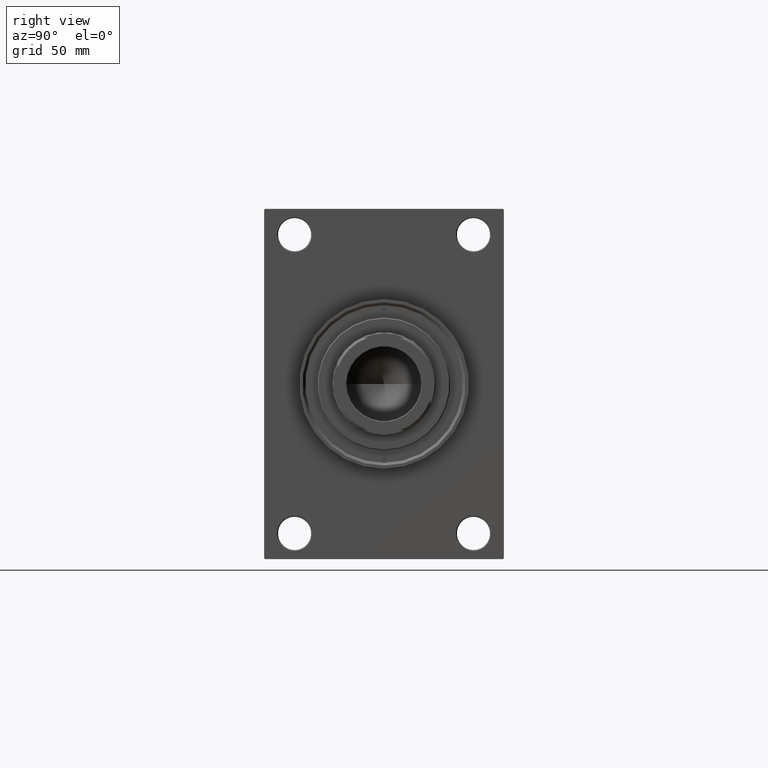
[diagram: clean part render]
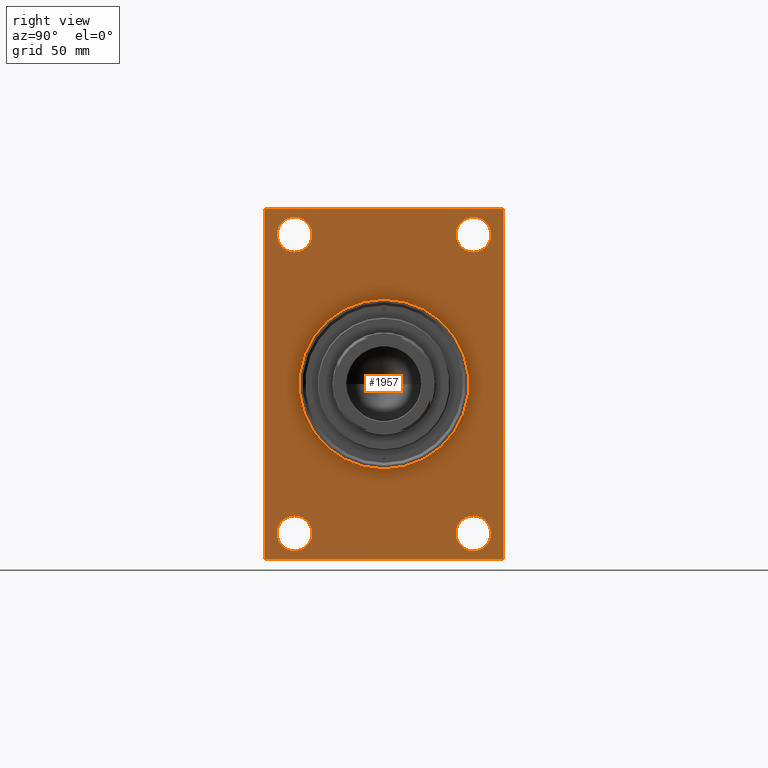
[diagram: same view with one face highlighted and labeled with its STEP entity id]
A machine part, right view. The second image highlights one B-rep face of the part: STEP entity #1957.
In plain terms, the highlighted planar face has unit normal (-1, 0, 0).
Its self-contained STEP definition (entity closure, byte-faithful):
#110 = DIRECTION ( 'NONE',  ( -1.000000000000000000, 0.000000000000000000, -0.000000000000000000 ) ) ;
#252 = CARTESIAN_POINT ( 'NONE',  ( 246.0000000000000000, 5.633375276077824704E-15, -46.00000000000000000 ) ) ;
#695 = VECTOR ( 'NONE', #41105, 1000.000000000000000 ) ;
#835 = VECTOR ( 'NONE', #39376, 1000.000000000000000 ) ;
#1339 = VERTEX_POINT ( 'NONE', #32577 ) ;
#1497 = AXIS2_PLACEMENT_3D ( 'NONE', #26065, #40837, #3973 ) ;
#1749 = ORIENTED_EDGE ( 'NONE', *, *, #45504, .F. ) ;
#1957 = ADVANCED_FACE ( 'NONE', ( #30671, #8340, #45426, #22194, #29716, #44475 ), #11262, .F. ) ;
#2492 = LINE ( 'NONE', #46135, #45872 ) ;
#2872 = CARTESIAN_POINT ( 'NONE',  ( 246.0000000000000000, 64.49999999999998579, -95.00000000000001421 ) ) ;
#3087 = EDGE_LOOP ( 'NONE', ( #6034, #28840 ) ) ;
#3107 = LINE ( 'NONE', #22030, #31258 ) ;
#3192 = CARTESIAN_POINT ( 'NONE',  ( 246.0000000000000000, 0.000000000000000000, 0.000000000000000000 ) ) ;
#3275 = DIRECTION ( 'NONE',  ( 0.000000000000000000, 0.000000000000000000, 1.000000000000000000 ) ) ;
#3719 = VERTEX_POINT ( 'NONE', #28174 ) ;
#3882 = CARTESIAN_POINT ( 'NONE',  ( 246.0000000000000000, -48.49999999999999289, -90.50000000000000000 ) ) ;
#3973 = DIRECTION ( 'NONE',  ( -0.000000000000000000, 0.000000000000000000, 1.000000000000000000 ) ) ;
#4565 = EDGE_CURVE ( 'NONE', #34836, #40055, #43947, .T. ) ;
#4572 = ORIENTED_EDGE ( 'NONE', *, *, #18733, .T. ) ;
#4810 = CIRCLE ( 'NONE', #31949, 46.00000000000000000 ) ;
#5076 = ORIENTED_EDGE ( 'NONE', *, *, #34911, .T. ) ;
#6034 = ORIENTED_EDGE ( 'NONE', *, *, #36909, .T. ) ;
#6385 = CIRCLE ( 'NONE', #17230, 9.499999999999980460 ) ;
#6458 = CIRCLE ( 'NONE', #17329, 46.00000000000000000 ) ;
#6848 = CARTESIAN_POINT ( 'NONE',  ( 246.0000000000000000, -65.00000000000001421, -94.50000000000002842 ) ) ;
#6919 = VERTEX_POINT ( 'NONE', #3882 ) ;
#7168 = DIRECTION ( 'NONE',  ( -0.000000000000000000, -0.7071067811865378028, -0.7071067811865573427 ) ) ;
#7448 = CARTESIAN_POINT ( 'NONE',  ( 246.0000000000000000, 0.000000000000000000, 0.000000000000000000 ) ) ;
#7467 = CARTESIAN_POINT ( 'NONE',  ( 246.0000000000000000, 64.49999999999991473, 94.99999999999997158 ) ) ;
#7526 = CARTESIAN_POINT ( 'NONE',  ( 246.0000000000000000, 48.50000000000000711, 90.49999999999998579 ) ) ;
#7724 = ORIENTED_EDGE ( 'NONE', *, *, #16387, .T. ) ;
#7854 = EDGE_CURVE ( 'NONE', #11502, #20138, #4810, .T. ) ;
#8340 = FACE_BOUND ( 'NONE', #3087, .T. ) ;
#8640 = LINE ( 'NONE', #31209, #9438 ) ;
#9161 = AXIS2_PLACEMENT_3D ( 'NONE', #17849, #14207, #10793 ) ;
#9424 = VERTEX_POINT ( 'NONE', #7526 ) ;
#9438 = VECTOR ( 'NONE', #15918, 1000.000000000000000 ) ;
#9715 = ORIENTED_EDGE ( 'NONE', *, *, #7854, .F. ) ;
#9819 = DIRECTION ( 'NONE',  ( 0.000000000000000000, 0.000000000000000000, 1.000000000000000000 ) ) ;
#10232 = AXIS2_PLACEMENT_3D ( 'NONE', #44508, #22458, #34090 ) ;
#10584 = EDGE_CURVE ( 'NONE', #15695, #35281, #18921, .T. ) ;
#10793 = DIRECTION ( 'NONE',  ( 0.000000000000000000, 0.000000000000000000, 1.000000000000000000 ) ) ;
#11041 = LINE ( 'NONE', #19039, #16804 ) ;
#11262 = PLANE ( 'NONE',  #1497 ) ;
#11263 = LINE ( 'NONE', #11735, #30458 ) ;
#11360 = CIRCLE ( 'NONE', #15206, 9.499999999999980460 ) ;
#11502 = VERTEX_POINT ( 'NONE', #16797 ) ;
#11534 = CARTESIAN_POINT ( 'NONE',  ( 246.0000000000000000, 64.99999999999997158, 94.99999999999997158 ) ) ;
#11735 = CARTESIAN_POINT ( 'NONE',  ( 246.0000000000000000, 64.99999999999997158, 94.99999999999997158 ) ) ;
#12853 = CARTESIAN_POINT ( 'NONE',  ( 246.0000000000000000, -48.50000000000000000, 90.49999999999998579 ) ) ;
#13132 = VERTEX_POINT ( 'NONE', #41290 ) ;
#14048 = EDGE_LOOP ( 'NONE', ( #19413, #36728 ) ) ;
#14207 = DIRECTION ( 'NONE',  ( -1.000000000000000000, 0.000000000000000000, -0.000000000000000000 ) ) ;
#14285 = AXIS2_PLACEMENT_3D ( 'NONE', #31547, #28624, #46304 ) ;
#14704 = VERTEX_POINT ( 'NONE', #22906 ) ;
#15179 = LINE ( 'NONE', #11534, #695 ) ;
#15206 = AXIS2_PLACEMENT_3D ( 'NONE', #34061, #23158, #16346 ) ;
#15245 = VERTEX_POINT ( 'NONE', #22254 ) ;
#15610 = EDGE_CURVE ( 'NONE', #20211, #14704, #11360, .T. ) ;
#15695 = VERTEX_POINT ( 'NONE', #30678 ) ;
#15918 = DIRECTION ( 'NONE',  ( 0.000000000000000000, 0.000000000000000000, -1.000000000000000000 ) ) ;
#16346 = DIRECTION ( 'NONE',  ( 0.000000000000000000, 0.000000000000000000, 1.000000000000000000 ) ) ;
#16387 = EDGE_CURVE ( 'NONE', #1339, #42162, #11041, .T. ) ;
#16797 = CARTESIAN_POINT ( 'NONE',  ( 246.0000000000000000, 0.000000000000000000, 46.00000000000000000 ) ) ;
#16804 = VECTOR ( 'NONE', #7168, 1000.000000000000000 ) ;
#17230 = AXIS2_PLACEMENT_3D ( 'NONE', #24397, #32379, #9819 ) ;
#17329 = AXIS2_PLACEMENT_3D ( 'NONE', #7448, #47479, #44538 ) ;
#17849 = CARTESIAN_POINT ( 'NONE',  ( 246.0000000000000000, -48.50000000000000000, 81.00000000000000000 ) ) ;
#18152 = ORIENTED_EDGE ( 'NONE', *, *, #43409, .T. ) ;
#18565 = EDGE_CURVE ( 'NONE', #14704, #20211, #32395, .T. ) ;
#18733 = EDGE_CURVE ( 'NONE', #9424, #45032, #29289, .T. ) ;
#18921 = CIRCLE ( 'NONE', #14285, 9.499999999999980460 ) ;
#19039 = CARTESIAN_POINT ( 'NONE',  ( 246.0000000000000000, -65.00000000000001421, 94.49999999999997158 ) ) ;
#19413 = ORIENTED_EDGE ( 'NONE', *, *, #10584, .T. ) ;
#20138 = VERTEX_POINT ( 'NONE', #252 ) ;
#20211 = VERTEX_POINT ( 'NONE', #12853 ) ;
#20620 = DIRECTION ( 'NONE',  ( 0.000000000000000000, 0.000000000000000000, 1.000000000000000000 ) ) ;
#20691 = EDGE_LOOP ( 'NONE', ( #28134, #18152, #26870, #30847, #39335, #5076, #32759, #7724 ) ) ;
#20738 = EDGE_CURVE ( 'NONE', #27185, #1339, #15179, .T. ) ;
#22030 = CARTESIAN_POINT ( 'NONE',  ( 246.0000000000000000, 64.49999999999991473, 94.99999999999997158 ) ) ;
#22194 = FACE_BOUND ( 'NONE', #26865, .T. ) ;
#22254 = CARTESIAN_POINT ( 'NONE',  ( 246.0000000000000000, 64.99999999999997158, 94.49999999999994316 ) ) ;
#22276 = VERTEX_POINT ( 'NONE', #6848 ) ;
#22458 = DIRECTION ( 'NONE',  ( -1.000000000000000000, 0.000000000000000000, -0.000000000000000000 ) ) ;
#22906 = CARTESIAN_POINT ( 'NONE',  ( 246.0000000000000000, -48.50000000000000000, 71.50000000000002842 ) ) ;
#23158 = DIRECTION ( 'NONE',  ( -1.000000000000000000, 0.000000000000000000, -0.000000000000000000 ) ) ;
#23410 = CARTESIAN_POINT ( 'NONE',  ( 246.0000000000000000, 48.50000000000000711, -71.50000000000004263 ) ) ;
#23548 = AXIS2_PLACEMENT_3D ( 'NONE', #38330, #24507, #20620 ) ;
#24397 = CARTESIAN_POINT ( 'NONE',  ( 246.0000000000000000, 48.50000000000000711, -81.00000000000001421 ) ) ;
#24507 = DIRECTION ( 'NONE',  ( -1.000000000000000000, 0.000000000000000000, -0.000000000000000000 ) ) ;
#25815 = CIRCLE ( 'NONE', #45908, 9.499999999999980460 ) ;
#25905 = DIRECTION ( 'NONE',  ( 0.000000000000000000, -0.7071067811865672237, 0.7071067811865279218 ) ) ;
#26065 = CARTESIAN_POINT ( 'NONE',  ( 246.0000000000000000, 0.000000000000000000, 0.000000000000000000 ) ) ;
#26865 = EDGE_LOOP ( 'NONE', ( #44358, #4572 ) ) ;
#26870 = ORIENTED_EDGE ( 'NONE', *, *, #44586, .F. ) ;
#27185 = VERTEX_POINT ( 'NONE', #7467 ) ;
#27495 = DIRECTION ( 'NONE',  ( 0.000000000000000000, 0.7071067811865474617, -0.7071067811865474617 ) ) ;
#28134 = ORIENTED_EDGE ( 'NONE', *, *, #40702, .T. ) ;
#28174 = CARTESIAN_POINT ( 'NONE',  ( 246.0000000000000000, -48.49999999999999289, -71.50000000000004263 ) ) ;
#28204 = DIRECTION ( 'NONE',  ( 0.000000000000000000, 0.000000000000000000, -1.000000000000000000 ) ) ;
#28220 = CIRCLE ( 'NONE', #23548, 9.499999999999980460 ) ;
#28235 = CARTESIAN_POINT ( 'NONE',  ( 246.0000000000000000, 64.99999999999998579, -94.49999999999997158 ) ) ;
#28624 = DIRECTION ( 'NONE',  ( -1.000000000000000000, 0.000000000000000000, -0.000000000000000000 ) ) ;
#28840 = ORIENTED_EDGE ( 'NONE', *, *, #44826, .T. ) ;
#28892 = LINE ( 'NONE', #32518, #46711 ) ;
#29289 = CIRCLE ( 'NONE', #34710, 9.499999999999980460 ) ;
#29716 = FACE_BOUND ( 'NONE', #45785, .T. ) ;
#30458 = VECTOR ( 'NONE', #44946, 1000.000000000000000 ) ;
#30671 = FACE_BOUND ( 'NONE', #46213, .T. ) ;
#30678 = CARTESIAN_POINT ( 'NONE',  ( 246.0000000000000000, 48.50000000000000711, -90.50000000000000000 ) ) ;
#30847 = ORIENTED_EDGE ( 'NONE', *, *, #4565, .T. ) ;
#31209 = CARTESIAN_POINT ( 'NONE',  ( 246.0000000000000000, -65.00000000000001421, 94.99999999999997158 ) ) ;
#31258 = VECTOR ( 'NONE', #25905, 1000.000000000000000 ) ;
#31547 = CARTESIAN_POINT ( 'NONE',  ( 246.0000000000000000, 48.50000000000000711, -81.00000000000001421 ) ) ;
#31867 = CARTESIAN_POINT ( 'NONE',  ( 246.0000000000000000, 48.50000000000000711, 71.50000000000002842 ) ) ;
#31906 = ORIENTED_EDGE ( 'NONE', *, *, #15610, .T. ) ;
#31949 = AXIS2_PLACEMENT_3D ( 'NONE', #3192, #47574, #28204 ) ;
#32379 = DIRECTION ( 'NONE',  ( -1.000000000000000000, 0.000000000000000000, -0.000000000000000000 ) ) ;
#32395 = CIRCLE ( 'NONE', #9161, 9.499999999999980460 ) ;
#32518 = CARTESIAN_POINT ( 'NONE',  ( 246.0000000000000000, 64.99999999999998579, -95.00000000000001421 ) ) ;
#32577 = CARTESIAN_POINT ( 'NONE',  ( 246.0000000000000000, -64.50000000000002842, 94.99999999999997158 ) ) ;
#32759 = ORIENTED_EDGE ( 'NONE', *, *, #20738, .T. ) ;
#32993 = DIRECTION ( 'NONE',  ( 0.000000000000000000, -1.000000000000000000, -1.067522139062650425E-16 ) ) ;
#34061 = CARTESIAN_POINT ( 'NONE',  ( 246.0000000000000000, -48.50000000000000000, 81.00000000000000000 ) ) ;
#34090 = DIRECTION ( 'NONE',  ( 0.000000000000000000, 0.000000000000000000, 1.000000000000000000 ) ) ;
#34315 = DIRECTION ( 'NONE',  ( -1.000000000000000000, 0.000000000000000000, -0.000000000000000000 ) ) ;
#34710 = AXIS2_PLACEMENT_3D ( 'NONE', #42296, #34315, #45436 ) ;
#34836 = VERTEX_POINT ( 'NONE', #2872 ) ;
#34911 = EDGE_CURVE ( 'NONE', #15245, #27185, #3107, .T. ) ;
#35281 = VERTEX_POINT ( 'NONE', #23410 ) ;
#36008 = ORIENTED_EDGE ( 'NONE', *, *, #18565, .T. ) ;
#36639 = CARTESIAN_POINT ( 'NONE',  ( 246.0000000000000000, -65.00000000000001421, 94.49999999999997158 ) ) ;
#36728 = ORIENTED_EDGE ( 'NONE', *, *, #43130, .T. ) ;
#36909 = EDGE_CURVE ( 'NONE', #6919, #3719, #28220, .T. ) ;
#38330 = CARTESIAN_POINT ( 'NONE',  ( 246.0000000000000000, -48.49999999999999289, -81.00000000000001421 ) ) ;
#38628 = EDGE_CURVE ( 'NONE', #45032, #9424, #42008, .T. ) ;
#39335 = ORIENTED_EDGE ( 'NONE', *, *, #44886, .F. ) ;
#39376 = DIRECTION ( 'NONE',  ( -0.000000000000000000, 0.7071067811865181518, 0.7071067811865769936 ) ) ;
#40055 = VERTEX_POINT ( 'NONE', #46620 ) ;
#40702 = EDGE_CURVE ( 'NONE', #42162, #22276, #8640, .T. ) ;
#40837 = DIRECTION ( 'NONE',  ( -1.000000000000000000, 0.000000000000000000, -0.000000000000000000 ) ) ;
#41105 = DIRECTION ( 'NONE',  ( 0.000000000000000000, -1.000000000000000000, 0.000000000000000000 ) ) ;
#41290 = CARTESIAN_POINT ( 'NONE',  ( 246.0000000000000000, -64.50000000000001421, -95.00000000000002842 ) ) ;
#42008 = CIRCLE ( 'NONE', #10232, 9.499999999999980460 ) ;
#42162 = VERTEX_POINT ( 'NONE', #36639 ) ;
#42296 = CARTESIAN_POINT ( 'NONE',  ( 246.0000000000000000, 48.50000000000000711, 81.00000000000000000 ) ) ;
#43130 = EDGE_CURVE ( 'NONE', #35281, #15695, #6385, .T. ) ;
#43409 = EDGE_CURVE ( 'NONE', #22276, #13132, #2492, .T. ) ;
#43947 = LINE ( 'NONE', #28235, #835 ) ;
#44358 = ORIENTED_EDGE ( 'NONE', *, *, #38628, .T. ) ;
#44475 = FACE_OUTER_BOUND ( 'NONE', #20691, .T. ) ;
#44508 = CARTESIAN_POINT ( 'NONE',  ( 246.0000000000000000, 48.50000000000000711, 81.00000000000000000 ) ) ;
#44538 = DIRECTION ( 'NONE',  ( 0.000000000000000000, 0.000000000000000000, -1.000000000000000000 ) ) ;
#44586 = EDGE_CURVE ( 'NONE', #34836, #13132, #28892, .T. ) ;
#44705 = CARTESIAN_POINT ( 'NONE',  ( 246.0000000000000000, -48.49999999999999289, -81.00000000000001421 ) ) ;
#44826 = EDGE_CURVE ( 'NONE', #3719, #6919, #25815, .T. ) ;
#44886 = EDGE_CURVE ( 'NONE', #15245, #40055, #11263, .T. ) ;
#44946 = DIRECTION ( 'NONE',  ( 0.000000000000000000, 7.304098846218135653E-17, -1.000000000000000000 ) ) ;
#45032 = VERTEX_POINT ( 'NONE', #31867 ) ;
#45426 = FACE_BOUND ( 'NONE', #14048, .T. ) ;
#45436 = DIRECTION ( 'NONE',  ( 0.000000000000000000, 0.000000000000000000, 1.000000000000000000 ) ) ;
#45504 = EDGE_CURVE ( 'NONE', #20138, #11502, #6458, .T. ) ;
#45785 = EDGE_LOOP ( 'NONE', ( #9715, #1749 ) ) ;
#45872 = VECTOR ( 'NONE', #27495, 1000.000000000000114 ) ;
#45908 = AXIS2_PLACEMENT_3D ( 'NONE', #44705, #110, #3275 ) ;
#46135 = CARTESIAN_POINT ( 'NONE',  ( 246.0000000000000000, -64.50000000000001421, -95.00000000000002842 ) ) ;
#46213 = EDGE_LOOP ( 'NONE', ( #36008, #31906 ) ) ;
#46304 = DIRECTION ( 'NONE',  ( 0.000000000000000000, 0.000000000000000000, 1.000000000000000000 ) ) ;
#46620 = CARTESIAN_POINT ( 'NONE',  ( 246.0000000000000000, 64.99999999999998579, -94.49999999999997158 ) ) ;
#46711 = VECTOR ( 'NONE', #32993, 1000.000000000000000 ) ;
#47479 = DIRECTION ( 'NONE',  ( 1.000000000000000000, 0.000000000000000000, 0.000000000000000000 ) ) ;
#47574 = DIRECTION ( 'NONE',  ( 1.000000000000000000, 0.000000000000000000, 0.000000000000000000 ) ) ;